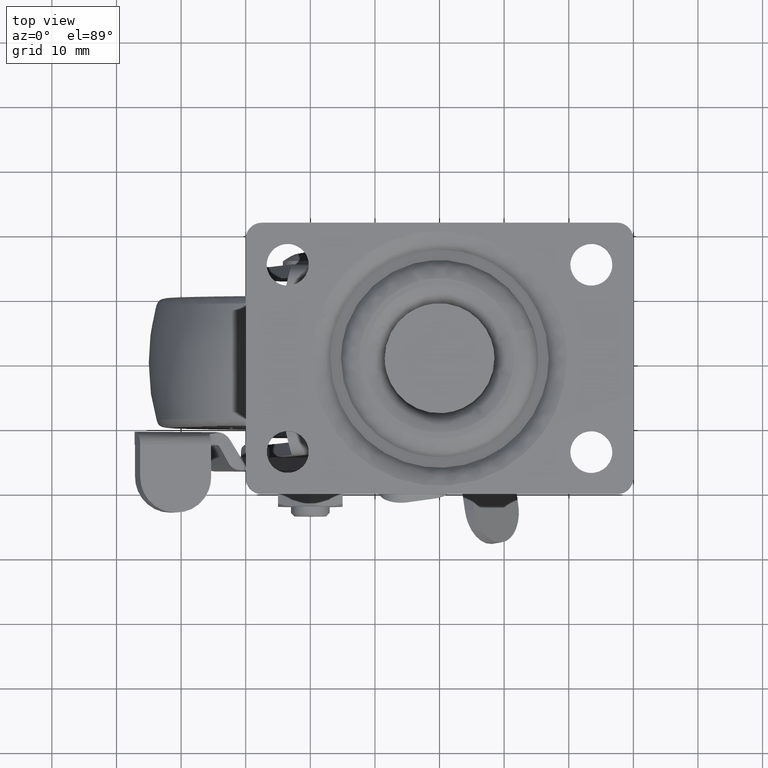
[diagram: clean part render]
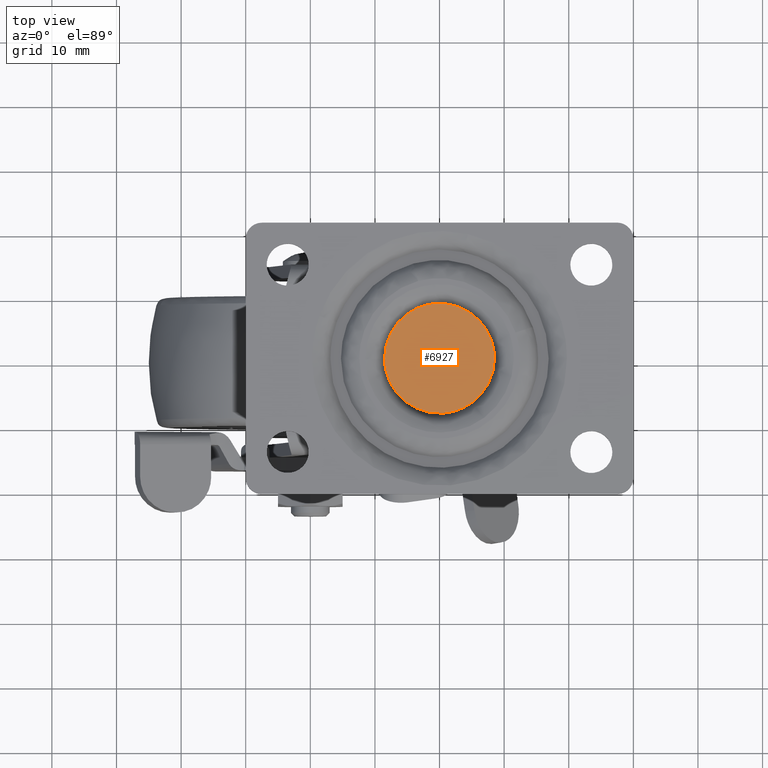
[diagram: same view with one face highlighted and labeled with its STEP entity id]
A machine part, top view. The second image highlights one B-rep face of the part: STEP entity #6927.
In plain terms, the highlighted face is a freeform B-spline surface patch.
Its self-contained STEP definition (entity closure, byte-faithful):
#6004=CARTESIAN_POINT('',(-1.003290168415426,8.440574023015856,5.110971E-016));
#6005=VERTEX_POINT('',#6004);
#6011=CARTESIAN_POINT('',(8.499993000000002,7.105427E-015,0.0));
#6012=VERTEX_POINT('',#6011);
#6013=CARTESIAN_POINT('',(-1.003290168415426,8.440574023015856,5.110971E-016));
#6014=CARTESIAN_POINT('',(-0.503404602545788,8.499993000000007,0.0));
#6015=CARTESIAN_POINT('',(0.0,8.499993000000007,0.0));
#6016=CARTESIAN_POINT('',(8.499993000000002,8.499993000000007,0.0));
#6017=CARTESIAN_POINT('',(8.499993000000002,7.105427E-015,0.0));
#6025=(BOUNDED_CURVE()B_SPLINE_CURVE(2,(#6013,#6014,#6015,#6016,#6017),.UNSPECIFIED.,.F.,.U.)B_SPLINE_CURVE_WITH_KNOTS((3,2,3),(0.229562473512736,0.250000000000000,0.500000000000000),.UNSPECIFIED.)CURVE()GEOMETRIC_REPRESENTATION_ITEM()RATIONAL_B_SPLINE_CURVE((0.956026754182186,0.976055948330240,1.0,0.707106781186547,1.0))REPRESENTATION_ITEM(''));
#6026=EDGE_CURVE('',#6005,#6012,#6025,.T.);
#6028=CARTESIAN_POINT('',(0.518912158793970,-8.484138799636924,4.996004E-016));
#6029=VERTEX_POINT('',#6028);
#6030=CARTESIAN_POINT('',(8.499993000000002,7.105427E-015,0.0));
#6031=CARTESIAN_POINT('',(8.499993000000002,-7.995994983590728,0.0));
#6032=CARTESIAN_POINT('',(0.518912158793970,-8.484138799636924,4.996004E-016));
#6040=(BOUNDED_CURVE()B_SPLINE_CURVE(2,(#6030,#6031,#6032),.UNSPECIFIED.,.F.,.U.)B_SPLINE_CURVE_WITH_KNOTS((3,3),(0.500000000000000,0.739332962238410),.UNSPECIFIED.)CURVE()GEOMETRIC_REPRESENTATION_ITEM()RATIONAL_B_SPLINE_CURVE((1.0,0.719603993287334,0.976072041665575))REPRESENTATION_ITEM(''));
#6041=EDGE_CURVE('',#6012,#6029,#6040,.T.);
#6115=CARTESIAN_POINT('',(-8.499993000000002,7.105427E-015,0.0));
#6116=VERTEX_POINT('',#6115);
#6117=CARTESIAN_POINT('',(0.518912158793970,-8.484138799636924,4.996004E-016));
#6118=CARTESIAN_POINT('',(0.259698274256371,-8.499992999999996,0.0));
#6119=CARTESIAN_POINT('',(0.0,-8.499992999999995,0.0));
#6120=CARTESIAN_POINT('',(-8.499993000000002,-8.499992999999995,0.0));
#6121=CARTESIAN_POINT('',(-8.499993000000002,7.105427E-015,0.0));
#6129=(BOUNDED_CURVE()B_SPLINE_CURVE(2,(#6117,#6118,#6119,#6120,#6121),.UNSPECIFIED.,.F.,.U.)B_SPLINE_CURVE_WITH_KNOTS((3,2,3),(0.739332962238411,0.750000000000000,1.0),.UNSPECIFIED.)CURVE()GEOMETRIC_REPRESENTATION_ITEM()RATIONAL_B_SPLINE_CURVE((0.976072041665577,0.987502787899214,1.0,0.707106781186547,1.0))REPRESENTATION_ITEM(''));
#6130=EDGE_CURVE('',#6029,#6116,#6129,.T.);
#6132=CARTESIAN_POINT('',(-8.499993000000002,7.105427E-015,0.0));
#6133=CARTESIAN_POINT('',(-8.499993000000002,7.549477253234126,0.0));
#6134=CARTESIAN_POINT('',(-1.003290168415426,8.440574023015856,5.110971E-016));
#6142=(BOUNDED_CURVE()B_SPLINE_CURVE(2,(#6132,#6133,#6134),.UNSPECIFIED.,.F.,.U.)B_SPLINE_CURVE_WITH_KNOTS((3,3),(0.0,0.229562473512736),.UNSPECIFIED.)CURVE()GEOMETRIC_REPRESENTATION_ITEM()RATIONAL_B_SPLINE_CURVE((1.0,0.731050832856307,0.956026754182186))REPRESENTATION_ITEM(''));
#6143=EDGE_CURVE('',#6116,#6005,#6142,.T.);
#6916=CARTESIAN_POINT('',(-9.349142586918140,-9.348935545059987,0.0));
#6917=CARTESIAN_POINT('',(9.349142738909860,-9.348935545059987,0.0));
#6918=CARTESIAN_POINT('',(-9.349142586918138,9.348987678219618,0.0));
#6919=CARTESIAN_POINT('',(9.349142738909860,9.348987678219618,0.0));
#6920=B_SPLINE_SURFACE_WITH_KNOTS('',1,1,((#6916,#6918),(#6917,#6919)),.UNSPECIFIED.,.F.,.F.,.U.,(2,2),(2,2),(0.0,18.698285325828000),(0.0,18.697923223279609),.UNSPECIFIED.);
#6921=ORIENTED_EDGE('',*,*,#6130,.F.);
#6922=ORIENTED_EDGE('',*,*,#6041,.F.);
#6923=ORIENTED_EDGE('',*,*,#6026,.F.);
#6924=ORIENTED_EDGE('',*,*,#6143,.F.);
#6925=EDGE_LOOP('',(#6921,#6922,#6923,#6924));
#6926=FACE_OUTER_BOUND('',#6925,.T.);
#6927=ADVANCED_FACE('',(#6926),#6920,.T.);